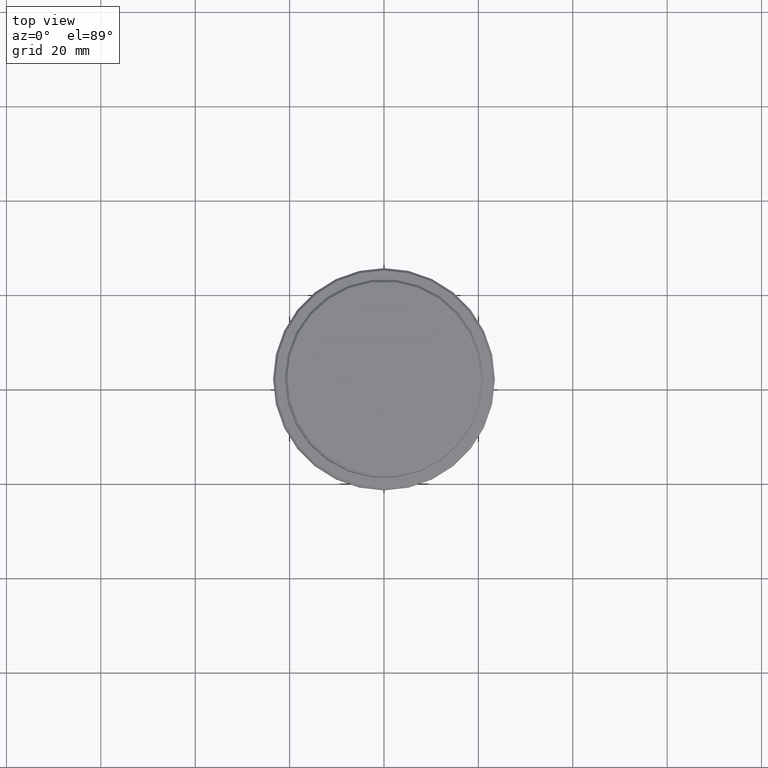
[diagram: clean part render]
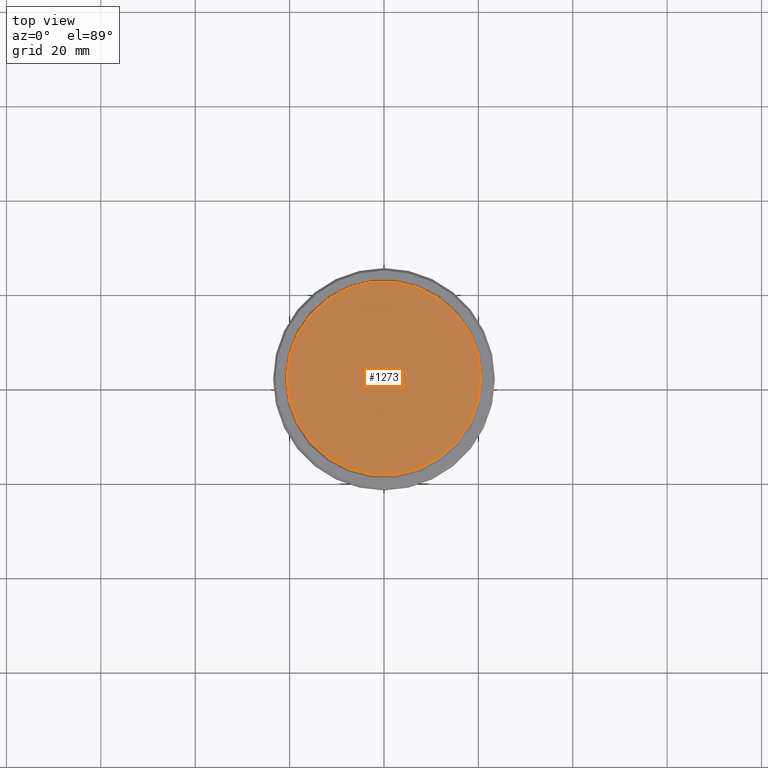
[diagram: same view with one face highlighted and labeled with its STEP entity id]
A machine part, top view. The second image highlights one B-rep face of the part: STEP entity #1273.
In plain terms, the highlighted planar face has unit normal (0, -0, 1).
Its self-contained STEP definition (entity closure, byte-faithful):
#34 = ORIENTED_EDGE ( 'NONE', *, *, #186, .T. ) ;
#59 = EDGE_LOOP ( 'NONE', ( #1245, #34 ) ) ;
#186 = EDGE_CURVE ( 'NONE', #574, #953, #357, .T. ) ;
#297 = AXIS2_PLACEMENT_3D ( 'NONE', #994, #1107, #1006 ) ;
#357 = CIRCLE ( 'NONE', #679, 20.49999999999996447 ) ;
#386 = CARTESIAN_POINT ( 'NONE',  ( 20.49999999999996447, 2.541142108230755902E-15, 0.000000000000000000 ) ) ;
#453 = FACE_OUTER_BOUND ( 'NONE', #59, .T. ) ;
#542 = CIRCLE ( 'NONE', #297, 20.49999999999996447 ) ;
#574 = VERTEX_POINT ( 'NONE', #386 ) ;
#593 = DIRECTION ( 'NONE',  ( -0.000000000000000000, -0.000000000000000000, 1.000000000000000000 ) ) ;
#595 = CARTESIAN_POINT ( 'NONE',  ( -20.49999999999996447, 0.000000000000000000, 0.000000000000000000 ) ) ;
#679 = AXIS2_PLACEMENT_3D ( 'NONE', #952, #593, #1055 ) ;
#758 = DIRECTION ( 'NONE',  ( 0.000000000000000000, -0.000000000000000000, 1.000000000000000000 ) ) ;
#799 = AXIS2_PLACEMENT_3D ( 'NONE', #1320, #758, #1099 ) ;
#952 = CARTESIAN_POINT ( 'NONE',  ( 0.000000000000000000, 0.000000000000000000, 0.000000000000000000 ) ) ;
#953 = VERTEX_POINT ( 'NONE', #595 ) ;
#994 = CARTESIAN_POINT ( 'NONE',  ( 0.000000000000000000, 0.000000000000000000, 0.000000000000000000 ) ) ;
#1006 = DIRECTION ( 'NONE',  ( 1.000000000000000000, 0.000000000000000000, 0.000000000000000000 ) ) ;
#1055 = DIRECTION ( 'NONE',  ( 1.000000000000000000, 0.000000000000000000, 0.000000000000000000 ) ) ;
#1099 = DIRECTION ( 'NONE',  ( 1.000000000000000000, 0.000000000000000000, 0.000000000000000000 ) ) ;
#1107 = DIRECTION ( 'NONE',  ( -0.000000000000000000, -0.000000000000000000, 1.000000000000000000 ) ) ;
#1207 = PLANE ( 'NONE',  #799 ) ;
#1245 = ORIENTED_EDGE ( 'NONE', *, *, #1312, .T. ) ;
#1273 = ADVANCED_FACE ( 'NONE', ( #453 ), #1207, .T. ) ;
#1312 = EDGE_CURVE ( 'NONE', #953, #574, #542, .T. ) ;
#1320 = CARTESIAN_POINT ( 'NONE',  ( 0.000000000000000000, 0.000000000000000000, 0.000000000000000000 ) ) ;